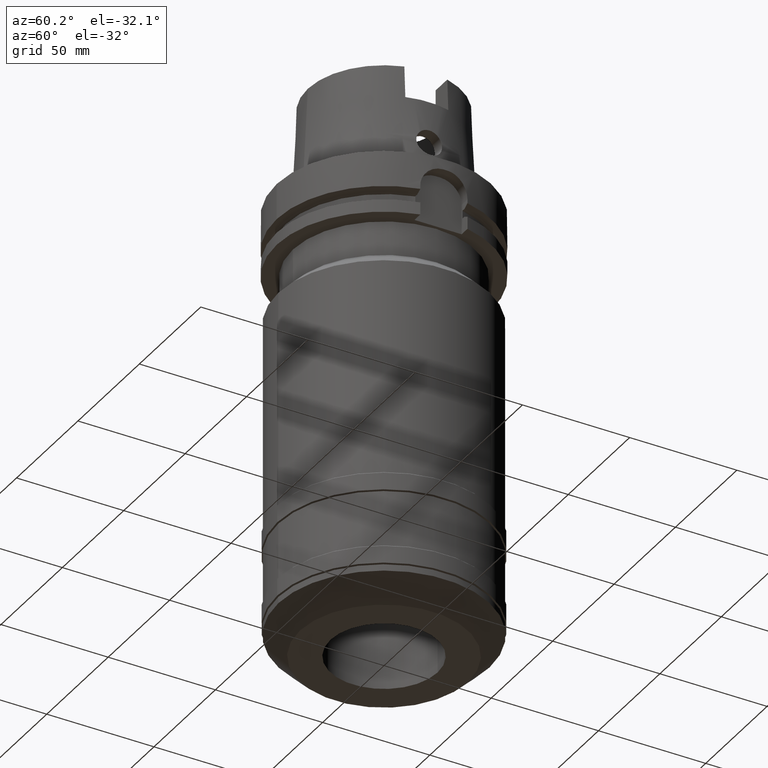
[diagram: clean part render]
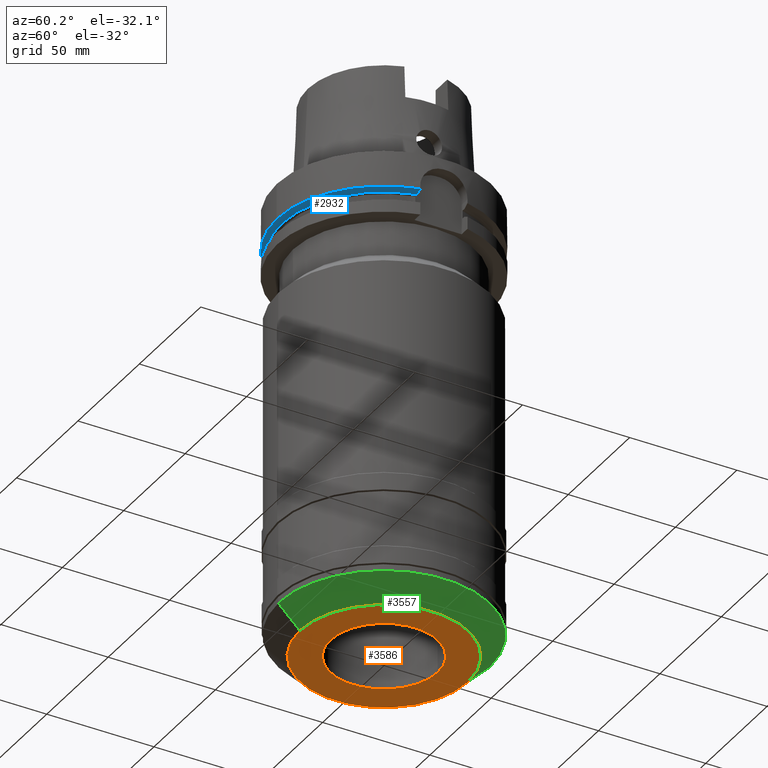
[diagram: same view with three faces highlighted in distinct colors, each labeled with its STEP entity id]
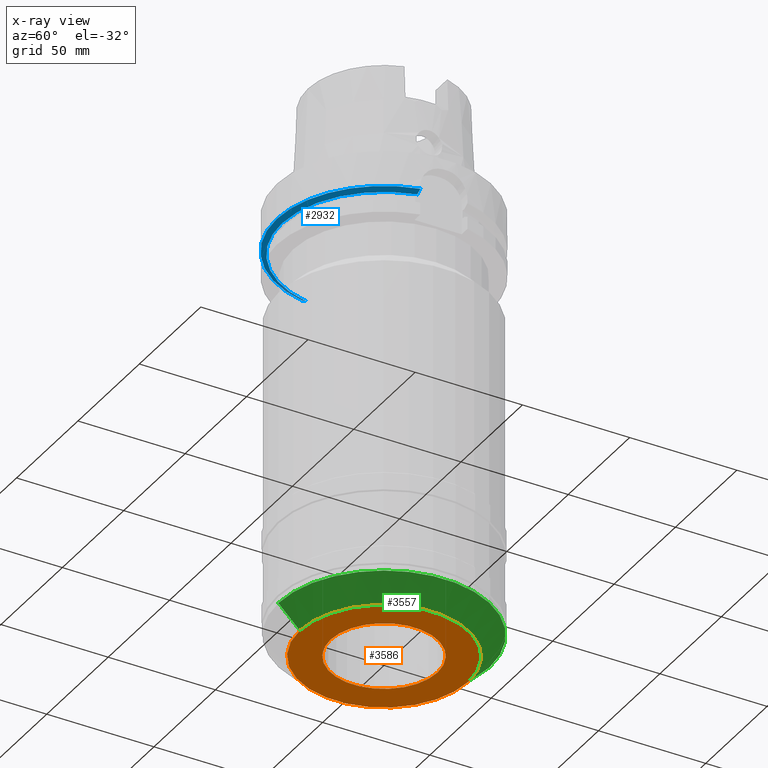
[diagram: x-ray of the same camera — body ghosted, the three highlighted faces saturated]
A machine part, auxiliary view with three faces highlighted in distinct colors.
The next image is the same camera in x-ray (body ghosted, the three faces saturated) — at least one of them is partly hidden behind the body in this view.
Their STEP definitions:

[orange] entity #3586 — the highlighted planar face has unit normal (0, 0, 1).
#1620=CARTESIAN_POINT('',(0.E0,0.E0,-2.1E2));
#1621=DIRECTION('',(0.E0,0.E0,1.E0));
#1622=DIRECTION('',(0.E0,-1.E0,0.E0));
#1623=AXIS2_PLACEMENT_3D('',#1620,#1621,#1622);
#1628=CARTESIAN_POINT('',(0.E0,0.E0,-2.1E2));
#1629=DIRECTION('',(0.E0,0.E0,1.E0));
#1630=DIRECTION('',(0.E0,1.E0,0.E0));
#1631=AXIS2_PLACEMENT_3D('',#1628,#1629,#1630);
#1636=CARTESIAN_POINT('',(0.E0,0.E0,-2.1E2));
#1637=DIRECTION('',(0.E0,0.E0,-1.E0));
#1638=DIRECTION('',(0.E0,-1.E0,0.E0));
#1639=AXIS2_PLACEMENT_3D('',#1636,#1637,#1638);
#1644=CARTESIAN_POINT('',(0.E0,0.E0,-2.1E2));
#1645=DIRECTION('',(0.E0,0.E0,-1.E0));
#1646=DIRECTION('',(0.E0,1.E0,0.E0));
#1647=AXIS2_PLACEMENT_3D('',#1644,#1645,#1646);
#2254=CARTESIAN_POINT('',(0.E0,3.925E1,-2.1E2));
#2255=VERTEX_POINT('',#2254);
#2256=CARTESIAN_POINT('',(0.E0,-3.925E1,-2.1E2));
#2257=VERTEX_POINT('',#2256);
#2258=CARTESIAN_POINT('',(0.E0,-2.5E1,-2.1E2));
#2259=CARTESIAN_POINT('',(0.E0,2.5E1,-2.1E2));
#2260=VERTEX_POINT('',#2258);
#2261=VERTEX_POINT('',#2259);
#3571=CARTESIAN_POINT('',(0.E0,0.E0,-2.1E2));
#3572=DIRECTION('',(0.E0,0.E0,1.E0));
#3573=DIRECTION('',(0.E0,1.E0,0.E0));
#3574=AXIS2_PLACEMENT_3D('',#3571,#3572,#3573);
#3575=PLANE('',#3574);
#3576=ORIENTED_EDGE('',*,*,#3550,.T.);
#3577=ORIENTED_EDGE('',*,*,#3566,.T.);
#3578=EDGE_LOOP('',(#3576,#3577));
#3579=FACE_OUTER_BOUND('',#3578,.F.);
#3581=ORIENTED_EDGE('',*,*,#3580,.T.);
#3583=ORIENTED_EDGE('',*,*,#3582,.T.);
#3584=EDGE_LOOP('',(#3581,#3583));
#3585=FACE_BOUND('',#3584,.F.);
#1624=CIRCLE('',#1623,3.925E1);
#1632=CIRCLE('',#1631,3.925E1);
#1640=CIRCLE('',#1639,2.5E1);
#1648=CIRCLE('',#1647,2.5E1);
#3550=EDGE_CURVE('',#2257,#2255,#1624,.T.);
#3566=EDGE_CURVE('',#2255,#2257,#1632,.T.);
#3580=EDGE_CURVE('',#2260,#2261,#1640,.T.);
#3582=EDGE_CURVE('',#2261,#2260,#1648,.T.);
#3586=ADVANCED_FACE('',(#3579,#3585),#3575,.F.);

[blue] entity #2932 — the highlighted conical surface has half-angle 60 deg.
#780=CARTESIAN_POINT('',(-4.656083740330E1,-1.E1,-1.8125E1));
#781=CARTESIAN_POINT('',(-4.683084020607E1,-1.E1,-1.797258933137E1));
#782=CARTESIAN_POINT('',(-4.737076227628E1,-1.E1,-1.766769351207E1));
#783=CARTESIAN_POINT('',(-4.818041161677E1,-1.E1,-1.721015586611E1));
#784=CARTESIAN_POINT('',(-4.872002593967E1,-1.E1,-1.690500907969E1));
#785=CARTESIAN_POINT('',(-4.898979485566E1,-1.E1,-1.675240473581E1));
#790=CARTESIAN_POINT('',(0.E0,0.E0,-1.675240473581E1));
#791=DIRECTION('',(0.E0,0.E0,1.E0));
#792=DIRECTION('',(-9.797958971133E-1,-2.E-1,0.E0));
#793=AXIS2_PLACEMENT_3D('',#790,#791,#792);
#798=CARTESIAN_POINT('',(0.E0,0.E0,-1.675240473581E1));
#799=DIRECTION('',(0.E0,0.E0,1.E0));
#800=DIRECTION('',(0.E0,-1.E0,0.E0));
#801=AXIS2_PLACEMENT_3D('',#798,#799,#800);
#806=CARTESIAN_POINT('',(4.877499359303E1,-1.1E1,-1.675240473581E1));
#807=CARTESIAN_POINT('',(4.850402780016E1,-1.1E1,-1.690501405597E1));
#808=CARTESIAN_POINT('',(4.796198326448E1,-1.1E1,-1.721016680326E1));
#809=CARTESIAN_POINT('',(4.714858158705E1,-1.1E1,-1.766770576962E1));
#810=CARTESIAN_POINT('',(4.660608588337E1,-1.1E1,-1.797259575630E1));
#811=CARTESIAN_POINT('',(4.633477721644E1,-1.1E1,-1.8125E1));
#1062=CARTESIAN_POINT('',(0.E0,0.E0,-1.8125E1));
#1063=DIRECTION('',(0.E0,0.E0,1.E0));
#1064=DIRECTION('',(-9.777047459300E-1,-2.099843560504E-1,0.E0));
#1065=AXIS2_PLACEMENT_3D('',#1062,#1063,#1064);
#1070=CARTESIAN_POINT('',(0.E0,0.E0,-1.8125E1));
#1071=DIRECTION('',(0.E0,0.E0,1.E0));
#1072=DIRECTION('',(0.E0,-1.E0,0.E0));
#1073=AXIS2_PLACEMENT_3D('',#1070,#1071,#1072);
#2156=CARTESIAN_POINT('',(0.E0,-5.E1,-1.675240473581E1));
#2157=VERTEX_POINT('',#2156);
#2158=CARTESIAN_POINT('',(-4.898979485566E1,-1.E1,-1.675240473581E1));
#2159=VERTEX_POINT('',#2158);
#2318=VERTEX_POINT('',#780);
#2319=CARTESIAN_POINT('',(4.877499359303E1,-1.1E1,-1.675240473581E1));
#2320=VERTEX_POINT('',#2319);
#2321=VERTEX_POINT('',#811);
#2322=CARTESIAN_POINT('',(0.E0,-4.762259526419E1,-1.8125E1));
#2323=VERTEX_POINT('',#2322);
#2915=CARTESIAN_POINT('',(0.E0,0.E0,-1.743870236790E1));
#2916=DIRECTION('',(0.E0,0.E0,1.E0));
#2917=DIRECTION('',(0.E0,1.E0,0.E0));
#2918=AXIS2_PLACEMENT_3D('',#2915,#2916,#2917);
#2919=CONICAL_SURFACE('',#2918,4.881129763209E1,6.E1);
#2920=ORIENTED_EDGE('',*,*,#2887,.T.);
#2921=ORIENTED_EDGE('',*,*,#2639,.T.);
#2923=ORIENTED_EDGE('',*,*,#2922,.T.);
#2925=ORIENTED_EDGE('',*,*,#2924,.T.);
#2927=ORIENTED_EDGE('',*,*,#2926,.F.);
#2929=ORIENTED_EDGE('',*,*,#2928,.F.);
#2930=EDGE_LOOP('',(#2920,#2921,#2923,#2925,#2927,#2929));
#2931=FACE_OUTER_BOUND('',#2930,.F.);
#786=B_SPLINE_CURVE_WITH_KNOTS('',3,(#780,#781,#782,#783,#784,#785),
.UNSPECIFIED.,.F.,.F.,(4,1,1,4),(0.E0,3.333333333333E-1,6.666666666667E-1,1.E0),
.UNSPECIFIED.);
#794=CIRCLE('',#793,5.E1);
#802=CIRCLE('',#801,5.E1);
#812=B_SPLINE_CURVE_WITH_KNOTS('',3,(#806,#807,#808,#809,#810,#811),
.UNSPECIFIED.,.F.,.F.,(4,1,1,4),(0.E0,3.333333333333E-1,6.666666666667E-1,1.E0),
.UNSPECIFIED.);
#1066=CIRCLE('',#1065,4.762259526419E1);
#1074=CIRCLE('',#1073,4.762259526419E1);
#2639=EDGE_CURVE('',#2159,#2157,#794,.T.);
#2887=EDGE_CURVE('',#2318,#2159,#786,.T.);
#2922=EDGE_CURVE('',#2157,#2320,#802,.T.);
#2924=EDGE_CURVE('',#2320,#2321,#812,.T.);
#2926=EDGE_CURVE('',#2323,#2321,#1074,.T.);
#2928=EDGE_CURVE('',#2318,#2323,#1066,.T.);
#2932=ADVANCED_FACE('',(#2931),#2919,.T.);

[green] entity #3557 — the highlighted conical surface has half-angle 45 deg.
#1590=DIRECTION('',(0.E0,-7.071067811865E-1,-7.071067811865E-1));
#1591=VECTOR('',#1590,1.414213562373E1);
#1592=CARTESIAN_POINT('',(0.E0,4.925E1,-2.E2));
#1593=LINE('',#1592,#1591);
#1597=CARTESIAN_POINT('',(0.E0,0.E0,-2.E2));
#1598=DIRECTION('',(0.E0,0.E0,1.E0));
#1599=DIRECTION('',(0.E0,-1.E0,0.E0));
#1600=AXIS2_PLACEMENT_3D('',#1597,#1598,#1599);
#1613=DIRECTION('',(0.E0,7.071067811865E-1,-7.071067811865E-1));
#1614=VECTOR('',#1613,1.414213562373E1);
#1615=CARTESIAN_POINT('',(0.E0,-4.925E1,-2.E2));
#1616=LINE('',#1615,#1614);
#1620=CARTESIAN_POINT('',(0.E0,0.E0,-2.1E2));
#1621=DIRECTION('',(0.E0,0.E0,1.E0));
#1622=DIRECTION('',(0.E0,-1.E0,0.E0));
#1623=AXIS2_PLACEMENT_3D('',#1620,#1621,#1622);
#2250=CARTESIAN_POINT('',(0.E0,4.925E1,-2.E2));
#2251=VERTEX_POINT('',#2250);
#2252=CARTESIAN_POINT('',(0.E0,-4.925E1,-2.E2));
#2253=VERTEX_POINT('',#2252);
#2254=CARTESIAN_POINT('',(0.E0,3.925E1,-2.1E2));
#2255=VERTEX_POINT('',#2254);
#2256=CARTESIAN_POINT('',(0.E0,-3.925E1,-2.1E2));
#2257=VERTEX_POINT('',#2256);
#3543=CARTESIAN_POINT('',(0.E0,0.E0,-2.05E2));
#3544=DIRECTION('',(0.E0,0.E0,1.E0));
#3545=DIRECTION('',(0.E0,1.E0,0.E0));
#3546=AXIS2_PLACEMENT_3D('',#3543,#3544,#3545);
#3547=CONICAL_SURFACE('',#3546,4.425E1,4.5E1);
#3549=ORIENTED_EDGE('',*,*,#3548,.T.);
#3551=ORIENTED_EDGE('',*,*,#3550,.F.);
#3553=ORIENTED_EDGE('',*,*,#3552,.F.);
#3554=ORIENTED_EDGE('',*,*,#3536,.T.);
#3555=EDGE_LOOP('',(#3549,#3551,#3553,#3554));
#3556=FACE_OUTER_BOUND('',#3555,.F.);
#1601=CIRCLE('',#1600,4.925E1);
#1624=CIRCLE('',#1623,3.925E1);
#3536=EDGE_CURVE('',#2253,#2251,#1601,.T.);
#3548=EDGE_CURVE('',#2251,#2255,#1593,.T.);
#3550=EDGE_CURVE('',#2257,#2255,#1624,.T.);
#3552=EDGE_CURVE('',#2253,#2257,#1616,.T.);
#3557=ADVANCED_FACE('',(#3556),#3547,.T.);